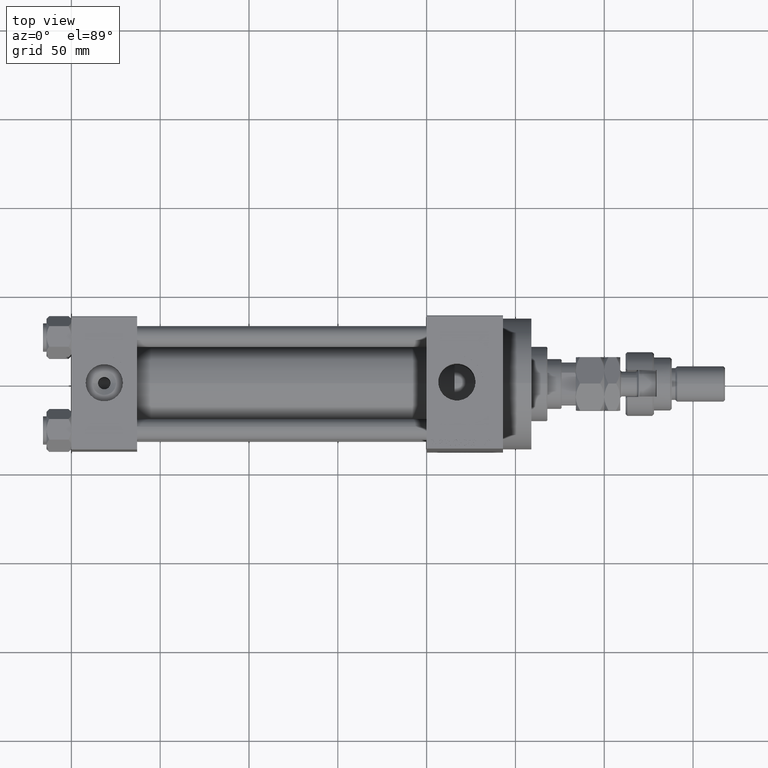
[diagram: clean part render]
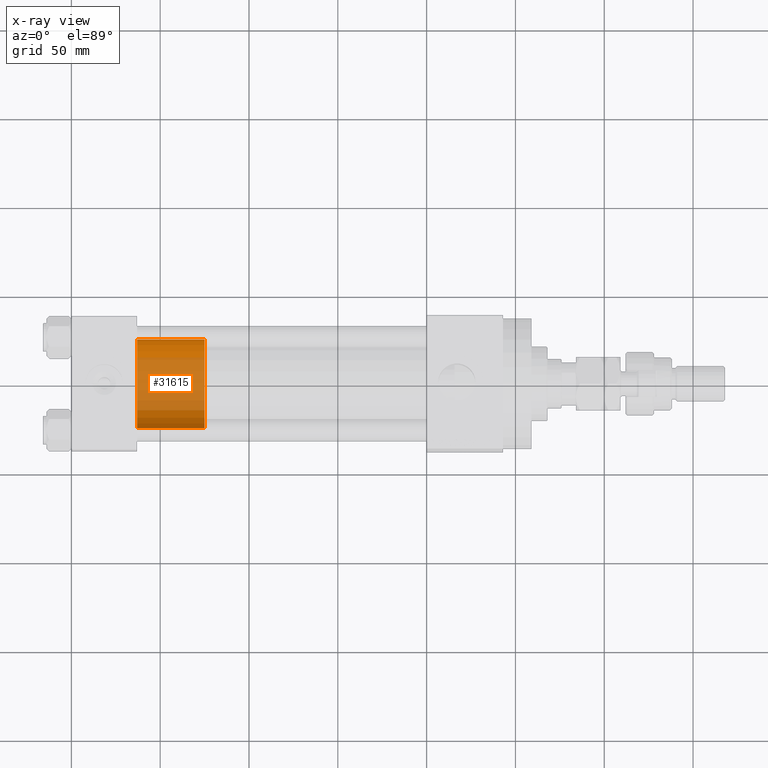
[diagram: x-ray — body ghosted, one internal face saturated and labeled with its STEP entity id]
A machine part, top view, then the same camera in x-ray: the body is ghosted and one INTERNAL B-rep face — a face not visible from any outside direction — is saturated and labeled: STEP entity #31615.
In plain terms, the highlighted cylindrical surface (partial cylindrical patch) has radius 25 mm, axis along (-1, 0, 0).
Its self-contained STEP definition (entity closure, byte-faithful):
#1553 = DIRECTION ( 'NONE',  ( 1.000000000000000000, 0.000000000000000000, 0.000000000000000000 ) ) ;
#2054 = DIRECTION ( 'NONE',  ( 0.000000000000000000, 0.000000000000000000, 1.000000000000000000 ) ) ;
#3644 = CIRCLE ( 'NONE', #32039, 25.00000000000000000 ) ;
#3717 = CARTESIAN_POINT ( 'NONE',  ( 0.000000000000000000, 0.000000000000000000, 38.00000000000000000 ) ) ;
#4248 = CARTESIAN_POINT ( 'NONE',  ( -25.00000000000000000, 0.000000000000000000, 38.00000000000000000 ) ) ;
#6531 = CARTESIAN_POINT ( 'NONE',  ( 25.00000000000000000, 3.061616997868383043E-15, 38.00000000000000000 ) ) ;
#6744 = VERTEX_POINT ( 'NONE', #4248 ) ;
#6826 = DIRECTION ( 'NONE',  ( 1.000000000000000000, 0.000000000000000000, 0.000000000000000000 ) ) ;
#8136 = VERTEX_POINT ( 'NONE', #34388 ) ;
#9361 = ORIENTED_EDGE ( 'NONE', *, *, #24902, .F. ) ;
#11197 = AXIS2_PLACEMENT_3D ( 'NONE', #30703, #46202, #6826 ) ;
#12095 = DIRECTION ( 'NONE',  ( -1.000000000000000000, 0.000000000000000000, 0.000000000000000000 ) ) ;
#13397 = DIRECTION ( 'NONE',  ( -0.000000000000000000, -0.000000000000000000, -1.000000000000000000 ) ) ;
#16579 = VERTEX_POINT ( 'NONE', #44629 ) ;
#17044 = CARTESIAN_POINT ( 'NONE',  ( 0.000000000000000000, 0.000000000000000000, 38.00000000000000000 ) ) ;
#18082 = EDGE_CURVE ( 'NONE', #8136, #39082, #25596, .T. ) ;
#20118 = CIRCLE ( 'NONE', #11197, 25.00000000000000000 ) ;
#22043 = EDGE_CURVE ( 'NONE', #8136, #6744, #3644, .T. ) ;
#23784 = CYLINDRICAL_SURFACE ( 'NONE', #44237, 25.00000000000000000 ) ;
#24363 = ORIENTED_EDGE ( 'NONE', *, *, #22043, .F. ) ;
#24771 = CARTESIAN_POINT ( 'NONE',  ( 25.00000000000000000, 3.061616997868383043E-15, 0.000000000000000000 ) ) ;
#24902 = EDGE_CURVE ( 'NONE', #6744, #16579, #47846, .T. ) ;
#25596 = LINE ( 'NONE', #6531, #27825 ) ;
#27825 = VECTOR ( 'NONE', #13397, 1000.000000000000000 ) ;
#28721 = ORIENTED_EDGE ( 'NONE', *, *, #18082, .T. ) ;
#30703 = CARTESIAN_POINT ( 'NONE',  ( 0.000000000000000000, 0.000000000000000000, 0.000000000000000000 ) ) ;
#31615 = ADVANCED_FACE ( 'NONE', ( #46406 ), #23784, .T. ) ;
#32039 = AXIS2_PLACEMENT_3D ( 'NONE', #17044, #2054, #1553 ) ;
#32098 = DIRECTION ( 'NONE',  ( -0.000000000000000000, -0.000000000000000000, -1.000000000000000000 ) ) ;
#32914 = VECTOR ( 'NONE', #32098, 1000.000000000000000 ) ;
#34388 = CARTESIAN_POINT ( 'NONE',  ( 25.00000000000000000, 3.061616997868383043E-15, 38.00000000000000000 ) ) ;
#37774 = EDGE_CURVE ( 'NONE', #39082, #16579, #20118, .T. ) ;
#39082 = VERTEX_POINT ( 'NONE', #24771 ) ;
#39716 = CARTESIAN_POINT ( 'NONE',  ( -25.00000000000000000, 0.000000000000000000, 38.00000000000000000 ) ) ;
#44237 = AXIS2_PLACEMENT_3D ( 'NONE', #3717, #46912, #12095 ) ;
#44629 = CARTESIAN_POINT ( 'NONE',  ( -25.00000000000000000, 0.000000000000000000, 0.000000000000000000 ) ) ;
#46202 = DIRECTION ( 'NONE',  ( 0.000000000000000000, 0.000000000000000000, 1.000000000000000000 ) ) ;
#46406 = FACE_OUTER_BOUND ( 'NONE', #47492, .T. ) ;
#46912 = DIRECTION ( 'NONE',  ( -0.000000000000000000, -0.000000000000000000, -1.000000000000000000 ) ) ;
#47492 = EDGE_LOOP ( 'NONE', ( #24363, #28721, #47851, #9361 ) ) ;
#47846 = LINE ( 'NONE', #39716, #32914 ) ;
#47851 = ORIENTED_EDGE ( 'NONE', *, *, #37774, .T. ) ;